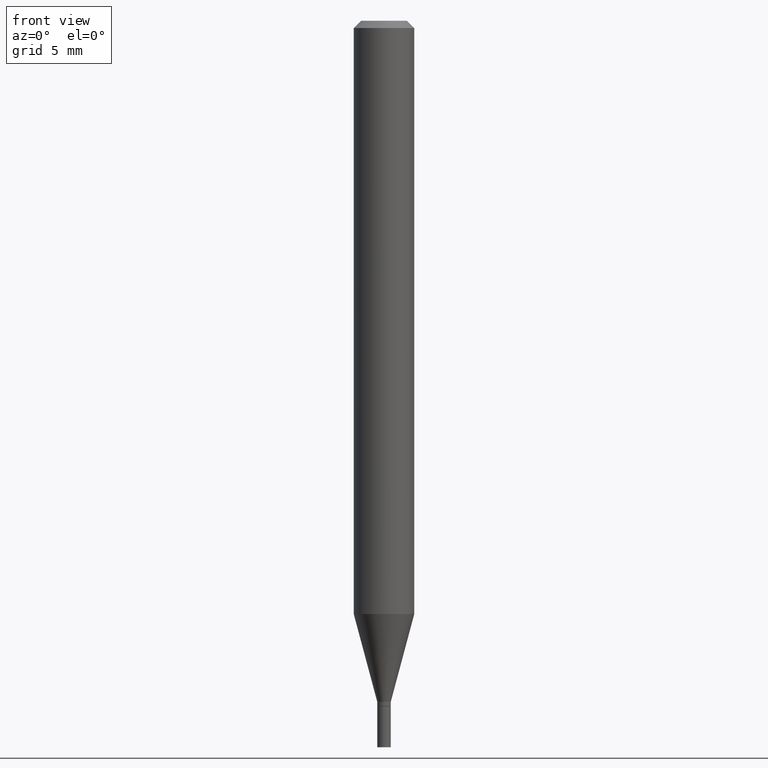
[diagram: clean part render]
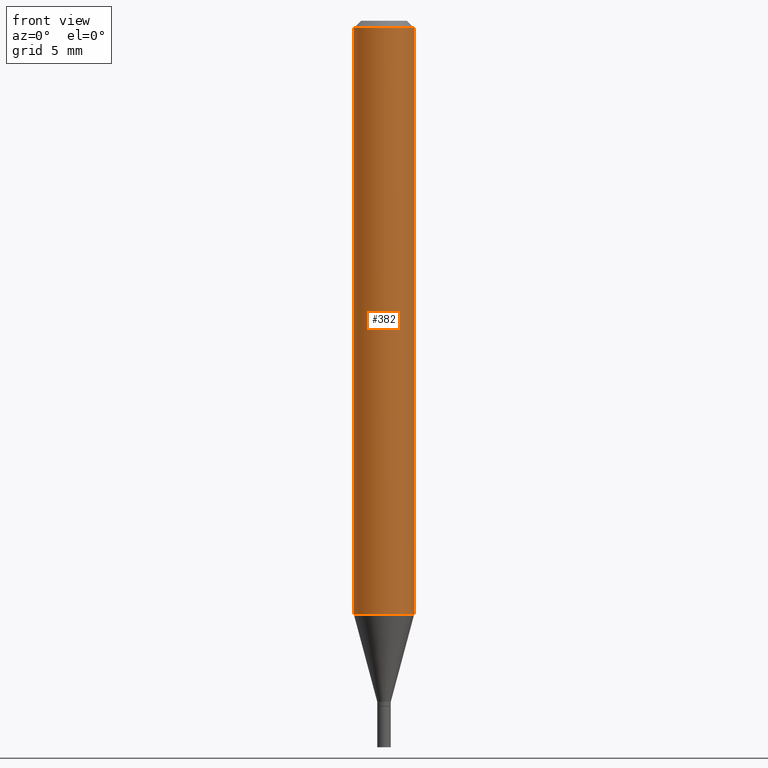
[diagram: same view with one face highlighted and labeled with its STEP entity id]
A machine part, front view. The second image highlights one B-rep face of the part: STEP entity #382.
In plain terms, the highlighted cylindrical surface (edge-blend (fillet) strip) has radius 1.5875 mm, axis along (-0, 0, 1).
Its self-contained STEP definition (entity closure, byte-faithful):
#1 = AXIS2_PLACEMENT_3D ( 'NONE', #114, #148, #203 ) ;
#14 = CARTESIAN_POINT ( 'NONE',  ( -0.06250000000000000000, -3.832959843676702294E-15, -1.224995535832909876 ) ) ;
#29 = FACE_OUTER_BOUND ( 'NONE', #315, .T. ) ;
#36 = DIRECTION ( 'NONE',  ( -2.445468806185136877E-29, 3.491481338843145188E-15, 1.000000000000000000 ) ) ;
#46 = CARTESIAN_POINT ( 'NONE',  ( -0.06250000000000000000, 4.440892098500626162E-16, -3.074334431409316114E-30 ) ) ;
#48 = CARTESIAN_POINT ( 'NONE',  ( 2.995688370595427801E-29, -4.277049053526764910E-15, -1.224995535832909876 ) ) ;
#60 = CARTESIAN_POINT ( 'NONE',  ( 0.06250000000000000000, -4.364351673553916694E-16, 3.047610484872459871E-30 ) ) ;
#85 = EDGE_CURVE ( 'NONE', #240, #168, #263, .T. ) ;
#111 = CYLINDRICAL_SURFACE ( 'NONE', #1, 0.06250000000000000000 ) ;
#114 = CARTESIAN_POINT ( 'NONE',  ( 0.000000000000000000, 0.000000000000000000, 0.000000000000000000 ) ) ;
#120 = DIRECTION ( 'NONE',  ( -2.445468806185136877E-29, 3.491481338843145188E-15, 1.000000000000000000 ) ) ;
#121 = EDGE_CURVE ( 'NONE', #240, #172, #278, .T. ) ;
#128 = DIRECTION ( 'NONE',  ( -2.445468806185136597E-29, 3.491481338843145583E-15, 1.000000000000000000 ) ) ;
#131 = CARTESIAN_POINT ( 'NONE',  ( -0.06250000000000000000, -1.720621426954643378E-15, -0.01499999999999999944 ) ) ;
#132 = ORIENTED_EDGE ( 'NONE', *, *, #85, .F. ) ;
#148 = DIRECTION ( 'NONE',  ( -2.445468806185136597E-29, 3.491481338843145583E-15, 1.000000000000000000 ) ) ;
#161 = CARTESIAN_POINT ( 'NONE',  ( 0.06250000000000000000, -4.713484220882155791E-15, -1.224995535832909876 ) ) ;
#168 = VERTEX_POINT ( 'NONE', #131 ) ;
#169 = AXIS2_PLACEMENT_3D ( 'NONE', #48, #400, #218 ) ;
#172 = VERTEX_POINT ( 'NONE', #161 ) ;
#176 = VERTEX_POINT ( 'NONE', #303 ) ;
#189 = EDGE_CURVE ( 'NONE', #168, #176, #385, .T. ) ;
#190 = ORIENTED_EDGE ( 'NONE', *, *, #189, .F. ) ;
#203 = DIRECTION ( 'NONE',  ( 1.000000000000000000, -6.982962677686266711E-15, 4.876176775795935793E-29 ) ) ;
#218 = DIRECTION ( 'NONE',  ( 1.000000000000000000, -6.982962677686270655E-15, 0.000000000000000000 ) ) ;
#235 = VECTOR ( 'NONE', #120, 39.37007874015748143 ) ;
#240 = VERTEX_POINT ( 'NONE', #14 ) ;
#263 = LINE ( 'NONE', #46, #235 ) ;
#277 = LINE ( 'NONE', #60, #297 ) ;
#278 = CIRCLE ( 'NONE', #169, 0.06250000000000000000 ) ;
#281 = ORIENTED_EDGE ( 'NONE', *, *, #356, .T. ) ;
#297 = VECTOR ( 'NONE', #36, 39.37007874015748143 ) ;
#303 = CARTESIAN_POINT ( 'NONE',  ( 0.06250000000000000000, -4.888073874380388472E-16, -0.01499999999999999944 ) ) ;
#307 = CARTESIAN_POINT ( 'NONE',  ( 3.668203209277705088E-31, -5.237222008264718399E-17, -0.01499999999999999944 ) ) ;
#315 = EDGE_LOOP ( 'NONE', ( #132, #439, #281, #190 ) ) ;
#356 = EDGE_CURVE ( 'NONE', #172, #176, #277, .T. ) ;
#378 = AXIS2_PLACEMENT_3D ( 'NONE', #307, #128, #407 ) ;
#382 = ADVANCED_FACE ( 'NONE', ( #29 ), #111, .T. ) ;
#385 = CIRCLE ( 'NONE', #378, 0.06250000000000000000 ) ;
#400 = DIRECTION ( 'NONE',  ( -2.445468806185136597E-29, 3.491481338843145583E-15, 1.000000000000000000 ) ) ;
#407 = DIRECTION ( 'NONE',  ( 1.000000000000000000, -6.982962677686266711E-15, 0.000000000000000000 ) ) ;
#439 = ORIENTED_EDGE ( 'NONE', *, *, #121, .T. ) ;